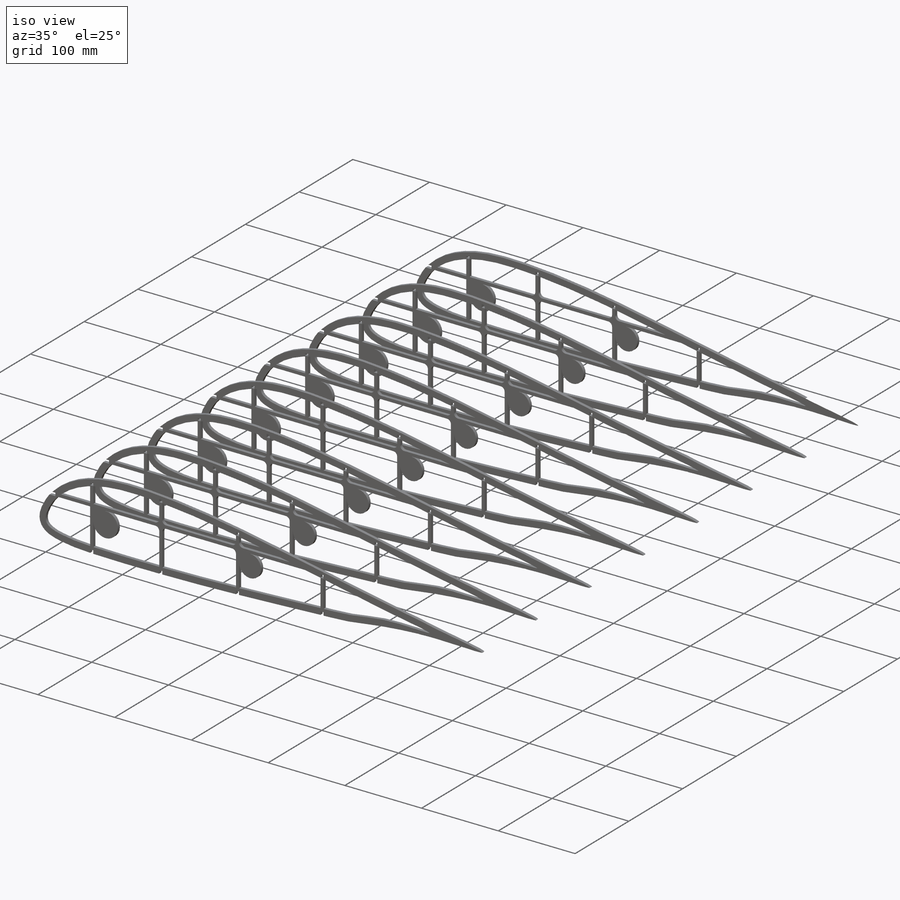
[diagram: iso view]
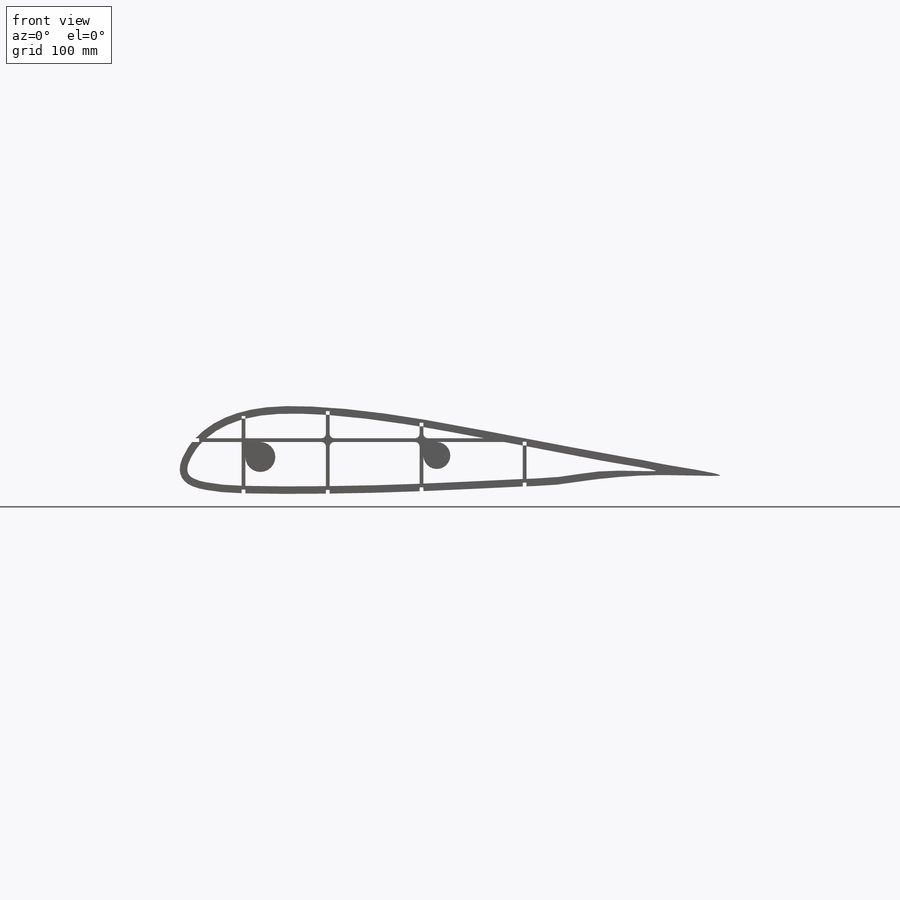
[diagram: front view]
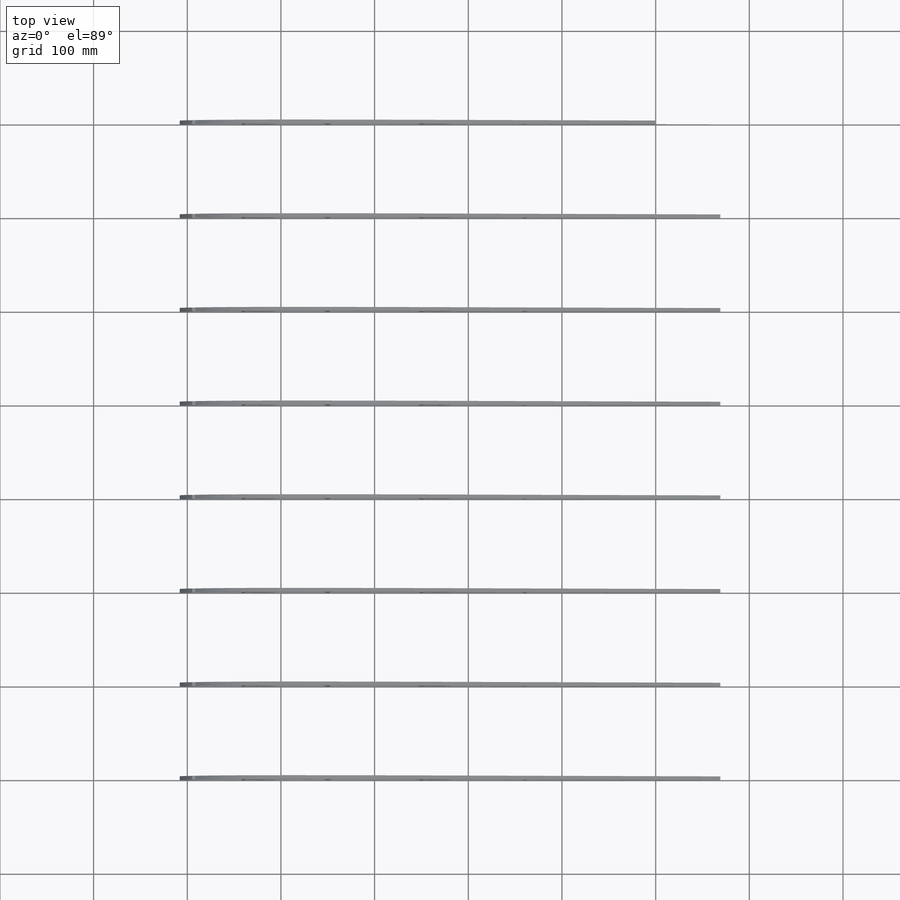
[diagram: top view]
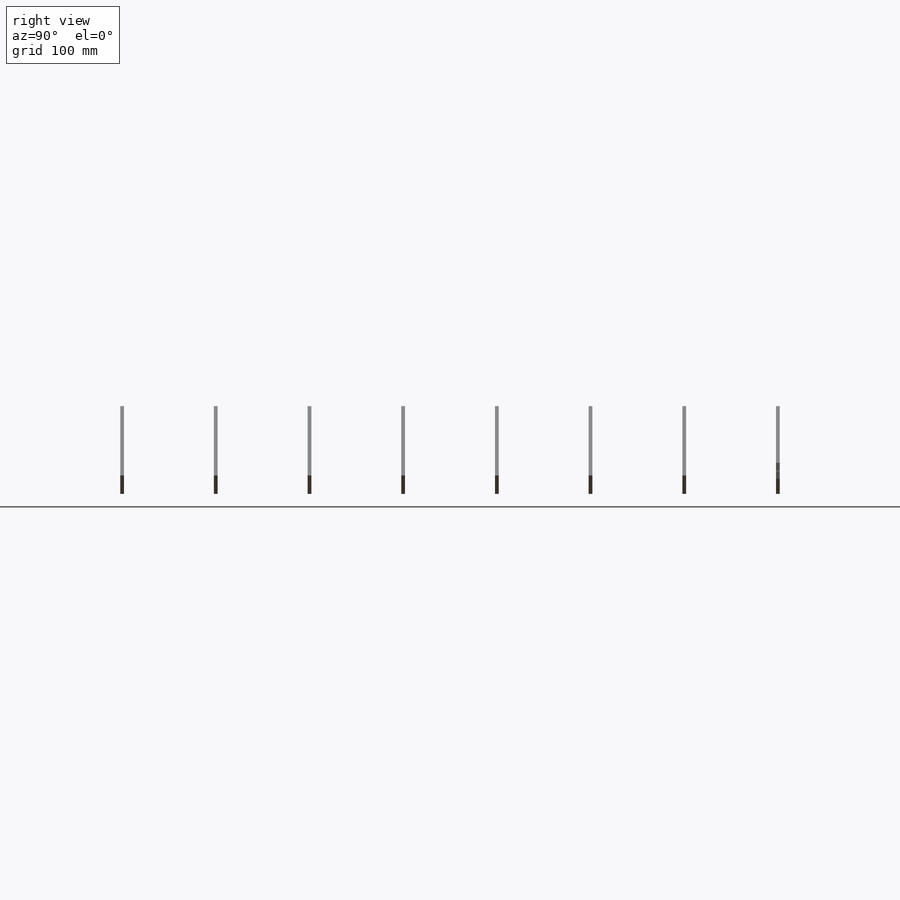
[diagram: right view]
SOLIDWORKS PART (.sldprt)
format: sldprt  version: not decoded by parser v0  size: 2,440,704 bytes
history: native  units: mm
features: sketch x6, extrude x2, cut_extrude x2, material x1, pattern_linear x1, plane x1 (+13 scaffold rows collapsed)
feature tree (26):
  scaffold x13  (default folders/planes/origin — collapsed)
  material  "Cedar"
  sketch  "Sketch11"  dims[c1.D3=32.0mm c1.D11=5.0mm c1.D12=5.0mm c1.D13=28.8mm c1.D19=~1038.448062mm c1.D20=~1038.448062mm c1.D1=4.0mm c1.D2=2.0mm c1.D4=2.0mm c1.D5=4.0mm c1.D6=2.0mm c1.D7=4.0mm c1.D8=2.0mm c1.D9=4.0mm c1.D10=2.0mm c1.D14=60.0mm c1.D15=150.0mm c1.D16=250.0mm c1.D17=140.0mm c1.D18=2.0mm c2.D19=79.616mm c2.D9=2.0mm c3.D19=2.0mm c3.D20=4.0mm c3.D21=4.0mm c3.D22=4.0mm c3.D23=4.0mm c3.D24=4.0mm c3.D25=0.1mm c3.D26=0.1mm c3.D27=4.0mm c3.D28=0.1mm c3.D29=4.0mm c3.D30=0.1mm c3.D31=4.0mm c3.D32=~500.144153mm c3.D33=2.0mm c3.D34=~1.650019mm c3.D35=~19.004713mm c4.D34=2.0mm c4.D35=~4.089875mm c4.D1=5.0mm c4.D18=8.0mm]
  extrude  "Boss-Extrude41"  Depth=4mm
  sketch  "Sketch13"
  cut_extrude  "Cut-Extrude3"  [1 undecoded]
  sketch  "Sketch18"  dims[D1=0.0mm]
  extrude  "Boss-Extrude52"  [1 undecoded]
  sketch  "Sketch19"
  cut_extrude  "Cut-Extrude4"  [1 undecoded]
  sketch  "Sketch21"
  pattern_linear  "LPattern1"  Count1=16 Count2=1 Spacing1=100mm Spacing2=50mm
  plane  "Plane2"
  sketch  "Sketch22"  dims[c1.D1=0.1mm c1.D2=0.1mm c1.D3=0.1mm c1.D4=0.1mm c1.D5=0.1mm c1.D6=0.1mm c1.D7=0.1mm c1.D8=0.1mm c1.D9=0.1mm c1.D10=0.1mm c1.D11=0.1mm c1.D12=0.1mm c1.D13=0.1mm c1.D14=0.1mm c1.D15=0.1mm c1.D16=0.1mm c1.D17=0.1mm c1.D18=0.1mm c1.D19=0.1mm c1.D20=0.1mm c1.D21=0.1mm c1.D22=0.1mm c1.D23=0.1mm c1.D24=0.1mm c1.D25=0.1mm c1.D26=0.1mm c1.D27=0.1mm c1.D28=0.1mm c2.D21=0.1mm c2.D22=0.1mm]
decode coverage: 5 of 11 modeling features carry decoded parameters
note: ~ marks probable driven/reference dimensions
note: 3 parameter values undecoded
summary: no parameter record found for 3 features
note: suppression state not decoded; provenance and decode notes live in map.json
